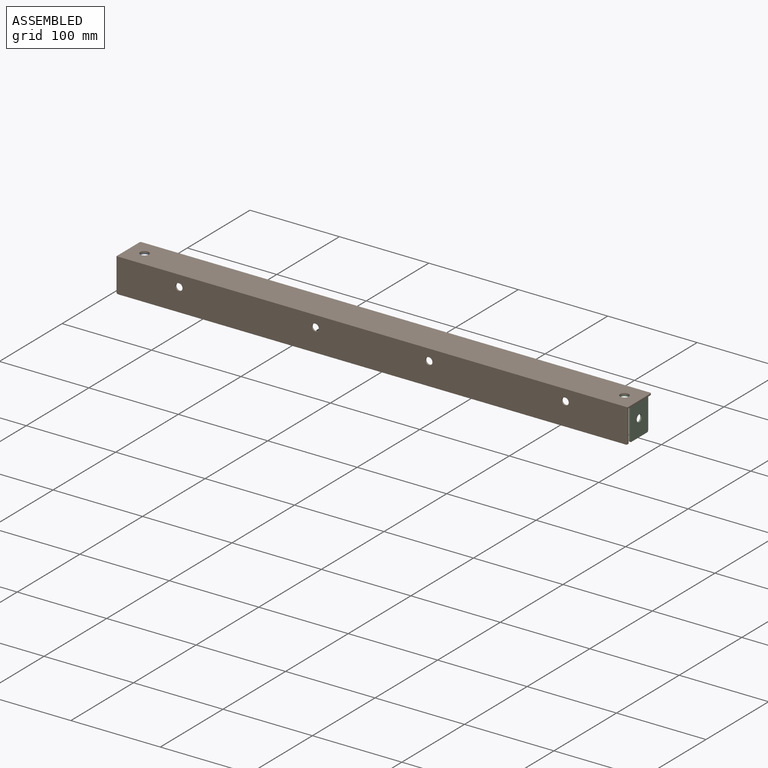
[diagram: assembled view]
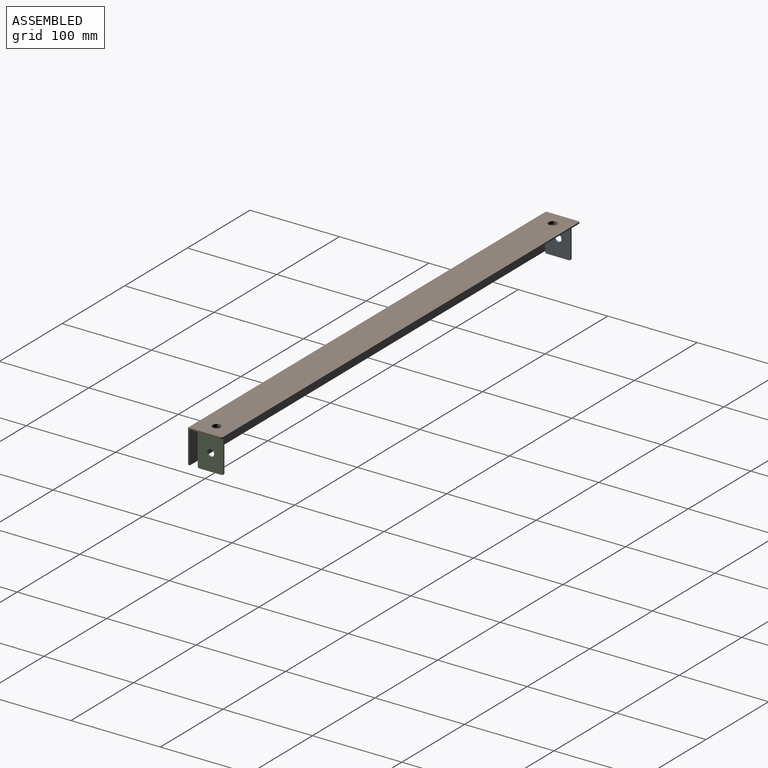
[diagram: assembled view, second angle]
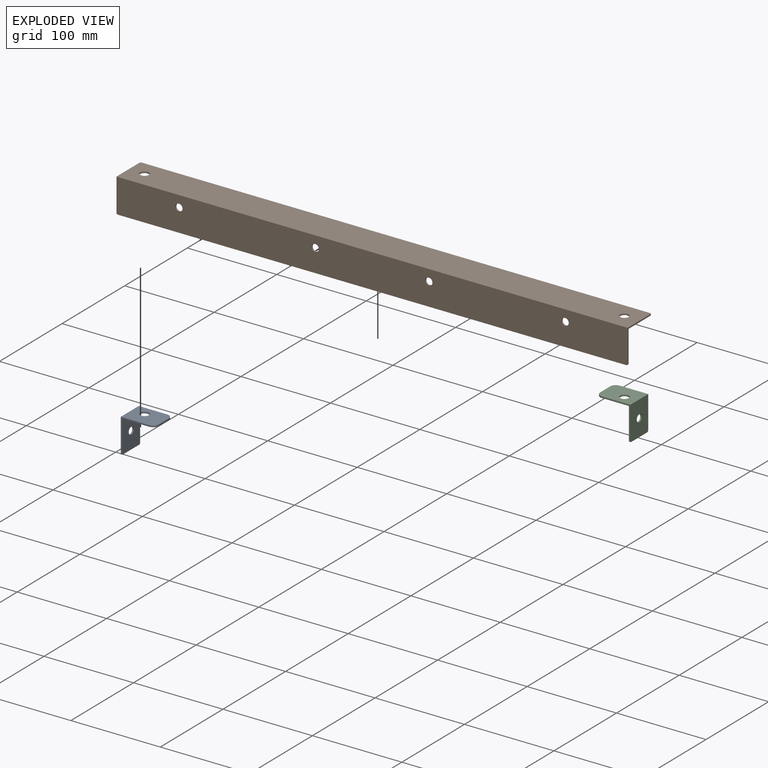
[diagram: exploded view]
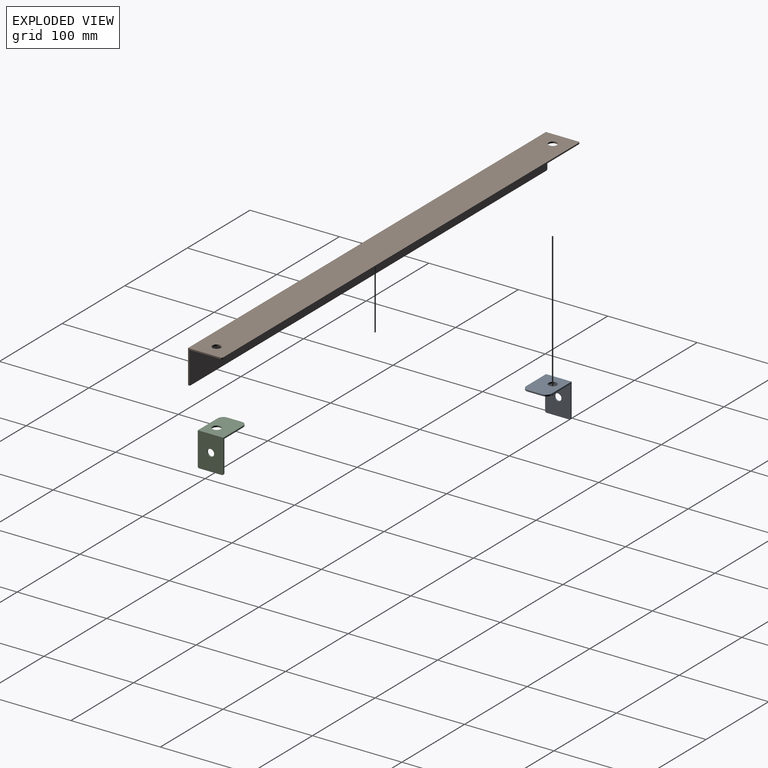
[diagram: exploded view, second angle]
ASSEMBLY  parts=3 mates=2
PART A: 14 faces, bbox 38.1x28.6x38.1 mm
  f0: plane 38.1x28.58mm, normal (1,0,0), area 1038.1mm2, adj f1,f5,f6,f7,f9,f10,f13
  f1: plane 38.1x28.58mm, normal (0,0,1), area 1000.1mm2, adj f0,f2,f6,f7,f8,f11,f12
  f2: plane 15.88x1.59mm, normal (-1,0,0), area 25.2mm2, adj f1,f3,f11,f12
  f3: plane 36.51x28.58mm, normal (0,0,-1), area 954.8mm2, adj f2,f4,f6,f7,f8,f11,f12
  f4: plane 36.51x28.58mm, normal (-1,0,0), area 992.8mm2, adj f3,f5,f6,f7,f9,f10,f13
  f5: plane 25.4x1.59mm, normal (0,0,-1), area 40.3mm2, adj f0,f4,f9,f10
  f6: plane 36.51x31.75mm, normal (0,-1,0), area 105.8mm2, adj f0,f1,f3,f4,f10,f12
  f7: plane 36.51x31.75mm, normal (0,1,0), area 105.8mm2, adj f0,f1,f3,f4,f9,f11
  f8: cylinder r=4.76mm len=9.53mm, axis (0,0,-1), area 47.5mm2, adj f1,f3
  f9: cylinder r=1.59mm len=1.59mm, axis (1,0,0), area 4mm2, adj f0,f4,f5,f7
  f10: cylinder r=1.59mm len=1.59mm, axis (-1,0,0), area 4mm2, adj f0,f4,f5,f6
  f11: cylinder r=6.35mm len=6.35mm, axis (0,0,-1), area 15.8mm2, adj f1,f2,f3,f7
  f12: cylinder r=6.35mm len=6.35mm, axis (0,0,1), area 15.8mm2, adj f1,f2,f3,f6
  f13: cylinder r=3.97mm len=7.94mm, axis (-1,0,0), area 39.6mm2, adj f0,f4
PART B: 18 faces, bbox 571.5x38.1x38.1 mm
  f0: plane 571.5x38.1mm, normal (0,-1,0), area 21575.1mm2, adj f2,f4,f6,f7,f10,f11,f12,f13
  f1: plane 571.5x36.51mm, normal (0,1,0), area 20667.9mm2, adj f3,f4,f6,f7,f10,f11,f12,f13
  f2: plane 571.5x38.1mm, normal (0,0,1), area 21630.6mm2, adj f0,f5,f6,f7,f8,f9,f15,f17
  f3: plane 571.5x36.51mm, normal (0,0,-1), area 20723.3mm2, adj f1,f5,f6,f7,f8,f9,f15,f17
  f4: plane 568.33x1.59mm, normal (0,0,-1), area 902.2mm2, adj f0,f1,f14,f16
  f5: plane 568.33x1.59mm, normal (0,1,0), area 902.2mm2, adj f2,f3,f15,f17
  f6: plane 36.51x36.51mm, normal (1,0,0), area 113.4mm2, adj f0,f1,f2,f3,f16,f17
  f7: plane 36.51x36.51mm, normal (-1,0,0), area 113.4mm2, adj f0,f1,f2,f3,f14,f15
  f8: cylinder r=4.76mm len=9.53mm, axis (0,0,-1), area 47.5mm2, adj f2,f3
  f9: cylinder r=4.76mm len=9.53mm, axis (0,0,-1), area 47.5mm2, adj f2,f3
  f10: cylinder r=3.97mm len=7.94mm, axis (0,1,0), area 39.6mm2, adj f0,f1
  f11: cylinder r=3.97mm len=7.94mm, axis (0,1,0), area 39.6mm2, adj f0,f1
  f12: cylinder r=3.97mm len=7.94mm, axis (0,1,0), area 39.6mm2, adj f0,f1
  f13: cylinder r=3.97mm len=7.94mm, axis (0,1,0), area 39.6mm2, adj f0,f1
  f14: cylinder r=1.59mm len=1.59mm, axis (0,1,0), area 4mm2, adj f0,f1,f4,f7
  f15: cylinder r=1.59mm len=1.59mm, axis (0,0,1), area 4mm2, adj f2,f3,f5,f7
  f16: cylinder r=1.59mm len=1.59mm, axis (0,-1,0), area 4mm2, adj f0,f1,f4,f6
  f17: cylinder r=1.59mm len=1.59mm, axis (0,0,-1), area 4mm2, adj f2,f3,f5,f6
PART C: same geometry as A
PLACE A rot(axis=(0,0,1),180deg) t=(-282.58,-2.38,-1.59)mm
PLACE B t=(0,-19.04,0)mm
PLACE C t=(282.58,3.97,-1.59)mm
MATE fastened B.f9 <-> A.f8  axis (0,0,-1) through (-268.29,0.8,-1.59)mm
MATE fastened C.f8 <-> B.f8  axis (0,0,-1) through (268.29,0.8,-1.59)mm
